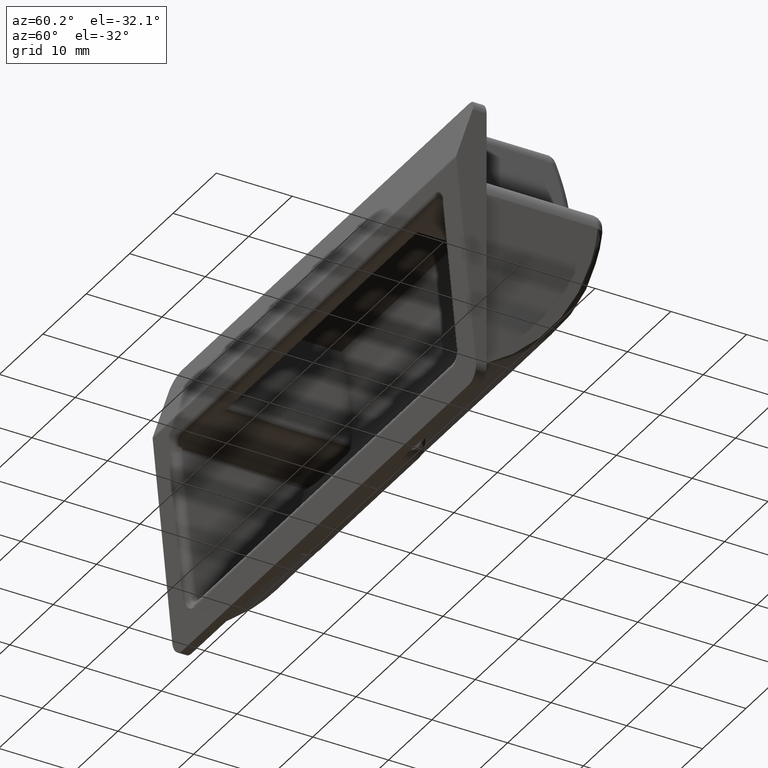
[diagram: clean part render]
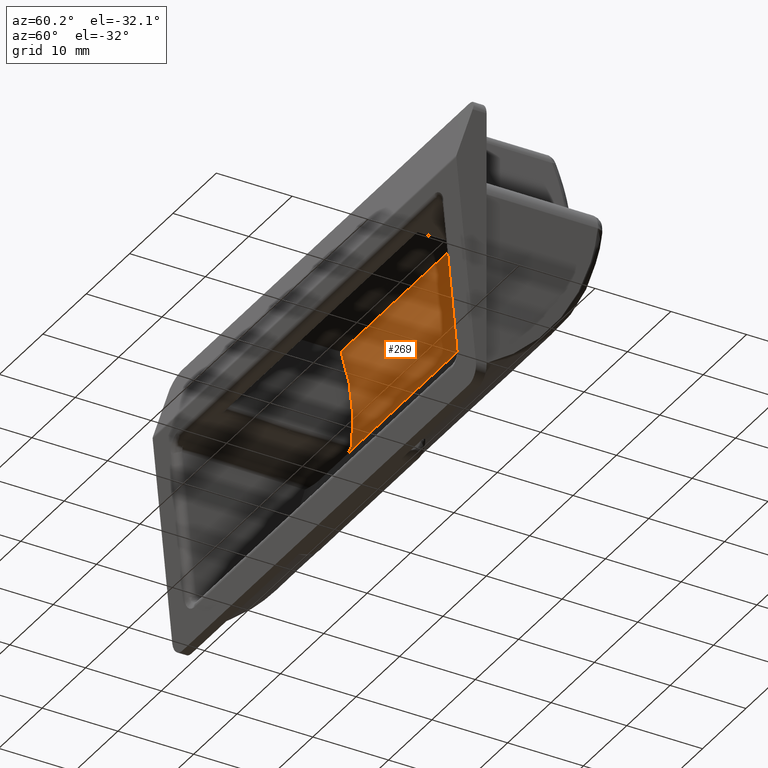
[diagram: same view with one face highlighted and labeled with its STEP entity id]
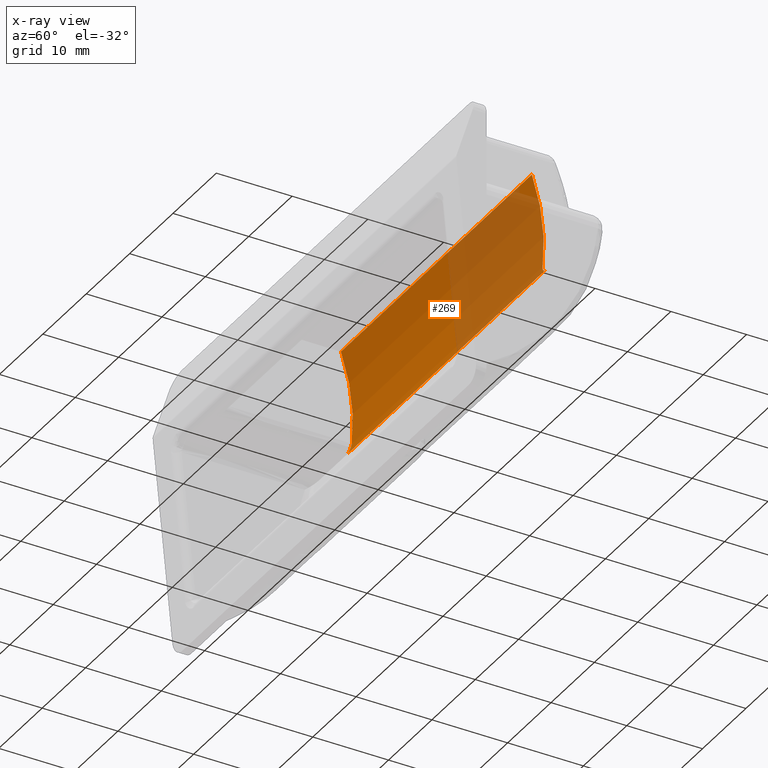
[diagram: x-ray of the same camera — body ghosted, the highlighted face saturated]
A machine part, auxiliary view. The second image highlights one B-rep face of the part: STEP entity #269.
The next image is the same camera in x-ray: the body ghosted, the highlighted face saturated — about 45% of this face is hidden behind the body in this view.
In plain terms, the highlighted face is a freeform B-spline surface patch.
Its self-contained STEP definition (entity closure, byte-faithful):
#19=CARTESIAN_POINT('',(-22.0,14.843725627225140,7.250000000000000));
#20=VERTEX_POINT('',#19);
#26=CARTESIAN_POINT('',(-22.0,13.420538686405900,19.250000000000000));
#27=VERTEX_POINT('',#26);
#28=CARTESIAN_POINT('',(-22.0,14.843725627225149,7.249999999999993));
#29=CARTESIAN_POINT('',(-22.0,15.509746497044967,13.413383561541638));
#30=CARTESIAN_POINT('',(-22.0,13.420538686405900,19.249999999999979));
#38=(BOUNDED_CURVE()B_SPLINE_CURVE(2,(#28,#29,#30),.UNSPECIFIED.,.F.,.U.)CURVE()GEOMETRIC_REPRESENTATION_ITEM()QUASI_UNIFORM_CURVE()RATIONAL_B_SPLINE_CURVE((1.0,0.974639770063482,1.0))REPRESENTATION_ITEM(''));
#39=EDGE_CURVE('',#20,#27,#38,.T.);
#61=CARTESIAN_POINT('',(22.0,14.843725627225140,7.250000000000000));
#62=VERTEX_POINT('',#61);
#63=CARTESIAN_POINT('',(22.0,13.420538686405900,19.250000000000000));
#64=VERTEX_POINT('',#63);
#65=CARTESIAN_POINT('',(22.0,14.843725627225149,7.249999999999993));
#66=CARTESIAN_POINT('',(22.0,15.509746497044967,13.413383561541638));
#67=CARTESIAN_POINT('',(22.0,13.420538686405900,19.249999999999979));
#75=(BOUNDED_CURVE()B_SPLINE_CURVE(2,(#65,#66,#67),.UNSPECIFIED.,.F.,.U.)CURVE()GEOMETRIC_REPRESENTATION_ITEM()QUASI_UNIFORM_CURVE()RATIONAL_B_SPLINE_CURVE((1.0,0.974639770063482,1.0))REPRESENTATION_ITEM(''));
#76=EDGE_CURVE('',#62,#64,#75,.T.);
#179=CARTESIAN_POINT('',(22.0,13.420538686405900,19.250000000000000));
#180=CARTESIAN_POINT('',(-22.0,13.420538686405900,19.250000000000000));
#181=QUASI_UNIFORM_CURVE('',1,(#179,#180),.UNSPECIFIED.,.F.,.U.);
#182=EDGE_CURVE('',#64,#27,#181,.T.);
#189=CARTESIAN_POINT('',(24.025140654660813,14.616130119190256,5.614060806415835));
#190=CARTESIAN_POINT('',(-24.053742012583022,14.616130119190256,5.614060806415835));
#191=CARTESIAN_POINT('',(24.025140654660810,15.863621678665487,12.932909615866732));
#192=CARTESIAN_POINT('',(-24.053742012583033,15.863621678665487,12.932909615866732));
#193=CARTESIAN_POINT('',(24.025140654660806,13.193628624636776,19.860601885158214));
#194=CARTESIAN_POINT('',(-24.053742012583026,13.193628624636776,19.860601885158214));
#202=(BOUNDED_SURFACE()B_SPLINE_SURFACE(1,2,((#189,#191,#193),(#190,#192,#194)),.UNSPECIFIED.,.F.,.F.,.U.)B_SPLINE_SURFACE_WITH_KNOTS((2,2),(3,3),(0.0,48.078882667243839),(0.0,14.578254022577919),.UNSPECIFIED.)GEOMETRIC_REPRESENTATION_ITEM()RATIONAL_B_SPLINE_SURFACE(((0.997563249083414,0.961565665893265,0.996950154680897),(0.997563249083414,0.961565665893265,0.996950154680897)))REPRESENTATION_ITEM('')SURFACE());
#203=ORIENTED_EDGE('',*,*,#39,.F.);
#204=CARTESIAN_POINT('',(-22.881086337772199,14.717773016486341,6.257095401896260));
#205=VERTEX_POINT('',#204);
#206=CARTESIAN_POINT('',(-22.0,14.843725627225140,7.250000000000000));
#207=CARTESIAN_POINT('',(-22.0,14.837141404805040,7.189069344417754));
#208=CARTESIAN_POINT('',(-22.005521803794998,14.830451007829151,7.129097027640098));
#209=CARTESIAN_POINT('',(-22.021728085031871,14.820276971388470,7.040512140571964));
#210=CARTESIAN_POINT('',(-22.028459274587540,14.816862682105571,7.011214217915700));
#211=CARTESIAN_POINT('',(-22.044619598866451,14.809993450770110,6.953085332139873));
#212=CARTESIAN_POINT('',(-22.054102976795829,14.806521832449700,6.924117829341912));
#213=CARTESIAN_POINT('',(-22.086344433419729,14.796185872546500,6.839007328174429));
#214=CARTESIAN_POINT('',(-22.112678247950221,14.789438857673540,6.784950629970435));
#215=CARTESIAN_POINT('',(-22.159233295320352,14.779591202713020,6.707769375303722));
#216=CARTESIAN_POINT('',(-22.175934695535251,14.776354519222510,6.682696965486742));
#217=CARTESIAN_POINT('',(-22.211758286697581,14.769987844064049,6.633890139341533));
#218=CARTESIAN_POINT('',(-22.230968325622818,14.766846478347061,6.610072132283865));
#219=CARTESIAN_POINT('',(-22.291176930408309,14.757785577592561,6.542017355922500));
#220=CARTESIAN_POINT('',(-22.334977388630040,14.752174491726130,6.500747627630709));
#221=CARTESIAN_POINT('',(-22.406096336824419,14.744475473594980,6.444899393460526));
#222=CARTESIAN_POINT('',(-22.430711183352319,14.742029366563010,6.427298854708785));
#223=CARTESIAN_POINT('',(-22.481814367213321,14.737398532891969,6.394190102185622));
#224=CARTESIAN_POINT('',(-22.508236974189181,14.735222397778911,6.378744082523862));
#225=CARTESIAN_POINT('',(-22.588699452529109,14.729237974537780,6.336488725402196));
#226=CARTESIAN_POINT('',(-22.644422950894580,14.725923197668850,6.313393744776925));
#227=CARTESIAN_POINT('',(-22.760029628982579,14.720720727790480,6.277333286162586));
#228=CARTESIAN_POINT('',(-22.820233115909890,14.718835117492590,6.264383392589251));
#229=CARTESIAN_POINT('',(-22.881086337772199,14.717773016486341,6.257095401896260));
#230=B_SPLINE_CURVE_WITH_KNOTS('',3,(#206,#207,#208,#209,#210,#211,#212,#213,#214,#215,#216,#217,#218,#219,#220,#221,#222,#223,#224,#225,#226,#227,#228,#229),.UNSPECIFIED.,.F.,.U.,(4,2,2,2,2,2,2,2,2,2,2,4),(0.0,0.125000000000001,0.187500000000000,0.250000000000000,0.374999999999999,0.437499999999998,0.499999999999998,0.625000000000000,0.687500000000002,0.750000000000004,0.875000000000002,1.0),.UNSPECIFIED.);
#231=EDGE_CURVE('',#20,#205,#230,.T.);
#232=ORIENTED_EDGE('',*,*,#231,.T.);
#233=CARTESIAN_POINT('',(22.881086337772199,14.717773016486341,6.257095401896260));
#234=VERTEX_POINT('',#233);
#235=CARTESIAN_POINT('',(-22.881086337772199,14.717773016486341,6.257095401896260));
#236=CARTESIAN_POINT('',(22.881086337772199,14.717773016486341,6.257095401896260));
#237=QUASI_UNIFORM_CURVE('',1,(#235,#236),.UNSPECIFIED.,.F.,.U.);
#238=EDGE_CURVE('',#205,#234,#237,.T.);
#239=ORIENTED_EDGE('',*,*,#238,.T.);
#240=CARTESIAN_POINT('',(22.881086337772199,14.717773016486341,6.257095401896260));
#241=CARTESIAN_POINT('',(22.820245945821160,14.718834893565880,6.264381856035049));
#242=CARTESIAN_POINT('',(22.761040655492089,14.720686279498910,6.277096256216778));
#243=CARTESIAN_POINT('',(22.674575658036641,14.724560923666070,6.303950417046497));
#244=CARTESIAN_POINT('',(22.646147016288271,14.726036356521480,6.314207349051482));
#245=CARTESIAN_POINT('',(22.590087114666940,14.729351313812280,6.337371244103668));
#246=CARTESIAN_POINT('',(22.562316700373149,14.731201803252860,6.350355719556011));
#247=CARTESIAN_POINT('',(22.481456701273849,14.737211010749220,6.392784241991839));
#248=CARTESIAN_POINT('',(22.430835482517100,14.741809853183099,6.425571330577624));
#249=CARTESIAN_POINT('',(22.359677580233448,14.749494493033660,6.481303103638297));
#250=CARTESIAN_POINT('',(22.336758931203448,14.752187902614899,6.500979079035150));
#251=CARTESIAN_POINT('',(22.292557493263601,14.757830245150920,6.542577809901374));
#252=CARTESIAN_POINT('',(22.271262532918151,14.760783998186900,6.564539255557537));
#253=CARTESIAN_POINT('',(22.211123138678349,14.769830101042521,6.632478980055527));
#254=CARTESIAN_POINT('',(22.175529100838968,14.776161036946471,6.680902090327993));
#255=CARTESIAN_POINT('',(22.113206337863179,14.789310662773451,6.783929516971514));
#256=CARTESIAN_POINT('',(22.086345844839052,14.796192490021401,6.839068041260651));
#257=CARTESIAN_POINT('',(22.043622186810779,14.809874736314899,6.951720821384330));
#258=CARTESIAN_POINT('',(22.027473782994129,14.816715472311310,7.009526411983957));
#259=CARTESIAN_POINT('',(22.005627119673449,14.830340266467569,7.128109212127687));
#260=CARTESIAN_POINT('',(22.0,14.837142897194621,7.189083155050110));
#261=CARTESIAN_POINT('',(22.0,14.843725627225140,7.250000000000000));
#262=B_SPLINE_CURVE_WITH_KNOTS('',3,(#240,#241,#242,#243,#244,#245,#246,#247,#248,#249,#250,#251,#252,#253,#254,#255,#256,#257,#258,#259,#260,#261),.UNSPECIFIED.,.F.,.U.,(4,2,2,2,2,2,2,2,2,2,4),(0.0,0.125000000000001,0.187500000000002,0.250000000000003,0.374999999999998,0.437499999999998,0.499999999999999,0.624999999999999,0.749999999999999,0.875000000000000,1.0),.UNSPECIFIED.);
#263=EDGE_CURVE('',#234,#62,#262,.T.);
#264=ORIENTED_EDGE('',*,*,#263,.T.);
#265=ORIENTED_EDGE('',*,*,#76,.T.);
#266=ORIENTED_EDGE('',*,*,#182,.T.);
#267=EDGE_LOOP('',(#203,#232,#239,#264,#265,#266));
#268=FACE_OUTER_BOUND('',#267,.T.);
#269=ADVANCED_FACE('',(#268),#202,.F.);